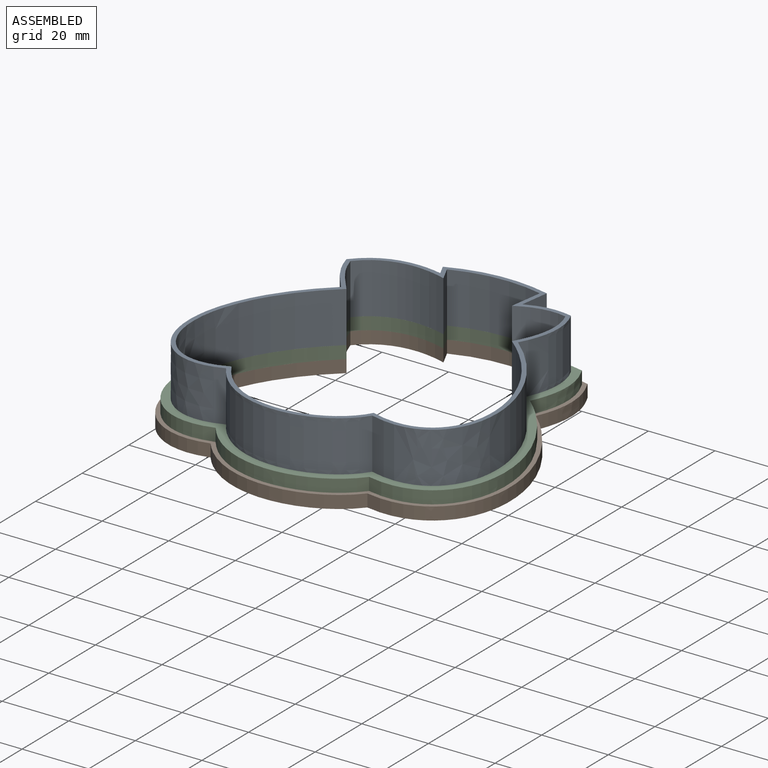
[diagram: assembled view]
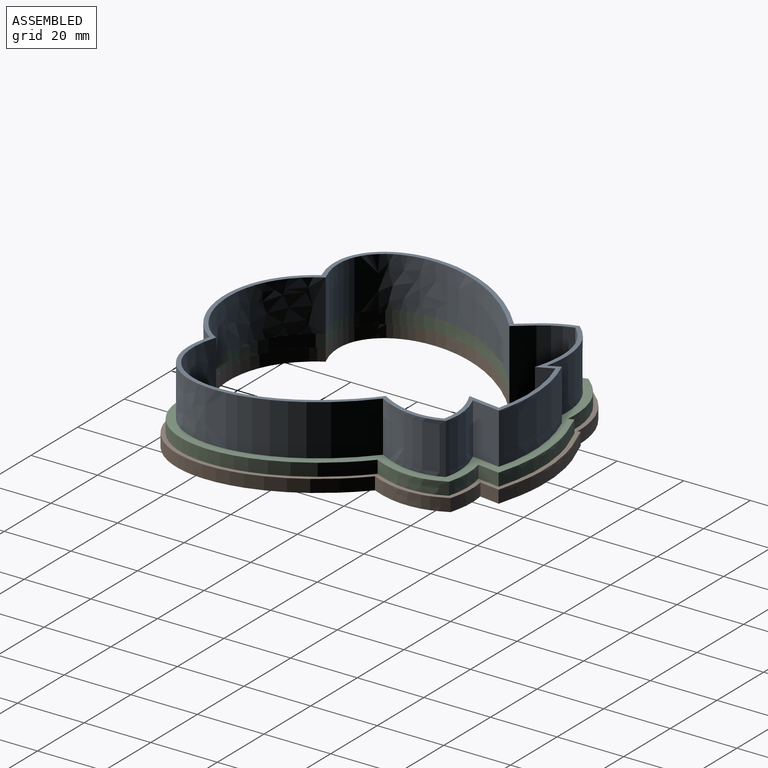
[diagram: assembled view, second angle]
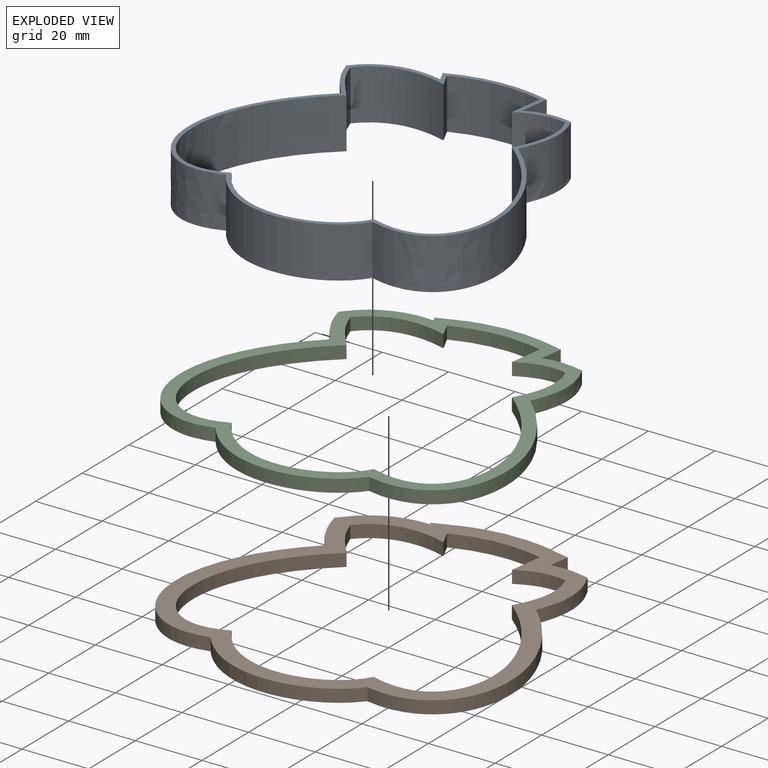
[diagram: exploded view]
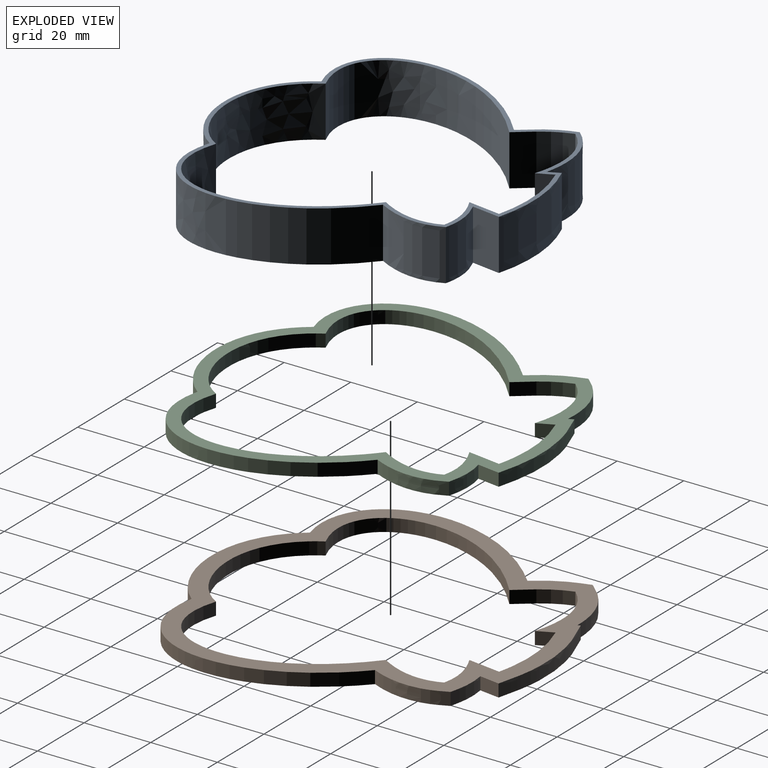
[diagram: exploded view, second angle]
ASSEMBLY  parts=3 mates=2
PART A: 22 faces, bbox 105.3x101.4x19.5 mm
  f0: plane 105.33x101.41mm, normal (0,0,1), area 421mm2, adj f2,f3,f4,f5,f6,f7,f8,f9
  f1: plane 105.33x101.41mm, normal (0,0,-1), area 421mm2, adj f2,f3,f4,f5,f6,f7,f8,f9
  f2: extruded ~45.21x15.24mm, area 813.4mm2, adj f0,f1,f3,f11
  f3: extruded ~56.64x24.47mm, area 1217.7mm2, adj f0,f1,f2,f4
  f4: extruded ~20.13x15.24mm, area 320.6mm2, adj f0,f1,f3,f5
  f5: extruded ~15.24x13.61mm, area 212.8mm2, adj f0,f1,f4,f6
  f6: plane 15.24x8.66mm, normal (0.99,-0.14,0), area 133.3mm2, adj f0,f1,f5,f7
  f7: extruded ~29.83x15.24mm, area 464.3mm2, adj f0,f1,f6,f8
  f8: plane 15.24x3.41mm, normal (-0.9,-0.43,0), area 57.5mm2, adj f0,f1,f7,f9
  f9: extruded ~23.56x15.24mm, area 394.2mm2, adj f0,f1,f8,f10
  f10: extruded ~15.24x14mm, area 249.4mm2, adj f0,f1,f9,f11
  f11: extruded ~56.64x23.74mm, area 1211.9mm2, adj f0,f1,f2,f10
  f12: extruded ~44.11x15.24mm, area 805.6mm2, adj f0,f1,f13,f21
  f13: extruded ~55.06x23.79mm, area 1196.3mm2, adj f0,f1,f12,f14
  f14: extruded ~19.32x15.24mm, area 309.1mm2, adj f0,f1,f13,f15
  f15: extruded ~15.24x14.32mm, area 226.6mm2, adj f0,f1,f14,f16
  f16: plane 15.24x9.89mm, normal (-0.99,0.14,0), area 152.3mm2, adj f0,f1,f15,f17
  f17: extruded ~26.68x15.24mm, area 414mm2, adj f0,f1,f16,f18
  f18: plane 15.24x4.69mm, normal (0.9,0.43,0), area 79mm2, adj f0,f1,f17,f19
  f19: extruded ~24.47x15.24mm, area 404.1mm2, adj f0,f1,f18,f20
  f20: extruded ~15.24x13.86mm, area 249.9mm2, adj f0,f1,f19,f21
  f21: extruded ~55.22x22.99mm, area 1192.3mm2, adj f0,f1,f12,f20
PART B: 22 faces, bbox 102.9x104.7x5.3 mm
  f0: plane 104.67x102.91mm, normal (0,0,1), area 1713.9mm2, adj f2,f3,f4,f5,f6,f7,f8,f9
  f1: plane 104.67x102.91mm, normal (0,0,-1), area 1713.9mm2, adj f2,f3,f4,f5,f6,f7,f8,f9
  f2: extruded ~48.29x12.14mm, area 210.2mm2, adj f0,f1,f3,f11
  f3: extruded ~61.36x26.69mm, area 322mm2, adj f0,f1,f2,f4
  f4: extruded ~22.52x3.81mm, area 89.1mm2, adj f0,f1,f3,f5
  f5: extruded ~11.65x3.81mm, area 44.7mm2, adj f0,f1,f4,f6
  f6: plane 6.1x3.81mm, normal (0.99,-0.14,0), area 23.5mm2, adj f0,f1,f5,f7
  f7: extruded ~39.28x5.37mm, area 153.9mm2, adj f0,f1,f6,f8
  f8: plane 3.81x0.79mm, normal (-0.9,-0.43,0), area 3.3mm2, adj f0,f1,f7,f9
  f9: extruded ~21.39x10.36mm, area 94.3mm2, adj f0,f1,f8,f10
  f10: extruded ~14.54x7.25mm, area 62.2mm2, adj f0,f1,f9,f11
  f11: extruded ~60.84x26.06mm, area 318mm2, adj f0,f1,f2,f10
  f12: extruded ~44.11x13.22mm, area 201.4mm2, adj f0,f1,f13,f21
  f13: extruded ~55.06x23.79mm, area 299.1mm2, adj f0,f1,f12,f14
  f14: extruded ~19.32x3.95mm, area 77.3mm2, adj f0,f1,f13,f15
  f15: extruded ~14.32x3.81mm, area 56.7mm2, adj f0,f1,f14,f16
  f16: plane 9.89x3.81mm, normal (-0.99,0.14,0), area 38.1mm2, adj f0,f1,f15,f17
  f17: extruded ~26.68x3.81mm, area 103.5mm2, adj f0,f1,f16,f18
  f18: plane 4.69x3.81mm, normal (0.9,0.43,0), area 19.7mm2, adj f0,f1,f17,f19
  f19: extruded ~24.47x6.5mm, area 101mm2, adj f0,f1,f18,f20
  f20: extruded ~13.86x8.52mm, area 62.5mm2, adj f0,f1,f19,f21
  f21: extruded ~55.22x22.99mm, area 298.1mm2, adj f0,f1,f12,f20
PART C: 22 faces, bbox 102.7x102.2x5.4 mm
  f0: plane 102.74x102.23mm, normal (0,0,1), area 1277.6mm2, adj f2,f3,f4,f5,f6,f7,f8,f9
  f1: plane 102.74x102.23mm, normal (0,0,-1), area 1277.6mm2, adj f2,f3,f4,f5,f6,f7,f8,f9
  f2: extruded ~47.29x12.35mm, area 207.8mm2, adj f0,f1,f3,f11
  f3: extruded ~59.76x25.93mm, area 315.9mm2, adj f0,f1,f2,f4
  f4: extruded ~21.73x3.81mm, area 86.5mm2, adj f0,f1,f3,f5
  f5: extruded ~12.28x3.81mm, area 47.2mm2, adj f0,f1,f4,f6
  f6: plane 6.78x3.81mm, normal (0.99,-0.14,0), area 26.1mm2, adj f0,f1,f5,f7
  f7: extruded ~36.13x4.78mm, area 140.8mm2, adj f0,f1,f6,f8
  f8: plane 3.81x1.49mm, normal (-0.9,-0.43,0), area 6.3mm2, adj f0,f1,f7,f9
  f9: extruded ~22.03x9.39mm, area 95.6mm2, adj f0,f1,f8,f10
  f10: extruded ~14.35x7.55mm, area 62.3mm2, adj f0,f1,f9,f11
  f11: extruded ~59.47x25.28mm, area 312.9mm2, adj f0,f1,f2,f10
  f12: extruded ~44.11x13.22mm, area 201.4mm2, adj f0,f1,f13,f21
  f13: extruded ~55.06x23.79mm, area 299.1mm2, adj f0,f1,f12,f14
  f14: extruded ~19.32x3.95mm, area 77.3mm2, adj f0,f1,f13,f15
  f15: extruded ~14.32x3.81mm, area 56.7mm2, adj f0,f1,f14,f16
  f16: plane 9.89x3.81mm, normal (-0.99,0.14,0), area 38.1mm2, adj f0,f1,f15,f17
  f17: extruded ~26.68x3.81mm, area 103.5mm2, adj f0,f1,f16,f18
  f18: plane 4.69x3.81mm, normal (0.9,0.43,0), area 19.7mm2, adj f0,f1,f17,f19
  f19: extruded ~24.47x6.5mm, area 101mm2, adj f0,f1,f18,f20
  f20: extruded ~13.86x8.52mm, area 62.5mm2, adj f0,f1,f19,f21
  f21: extruded ~55.22x22.99mm, area 298.1mm2, adj f0,f1,f12,f20
PLACE A t=(117.14,13.31,7.62)mm
PLACE B at identity
PLACE C t=(243.25,13.07,3.81)mm
MATE fastened A.f1 <-> C.f0  axis (0,0,1) through (87.25,28.75,7.62)mm
MATE fastened C.f1 <-> B.f0  axis (0,0,1) through (87.25,28.75,3.81)mm
